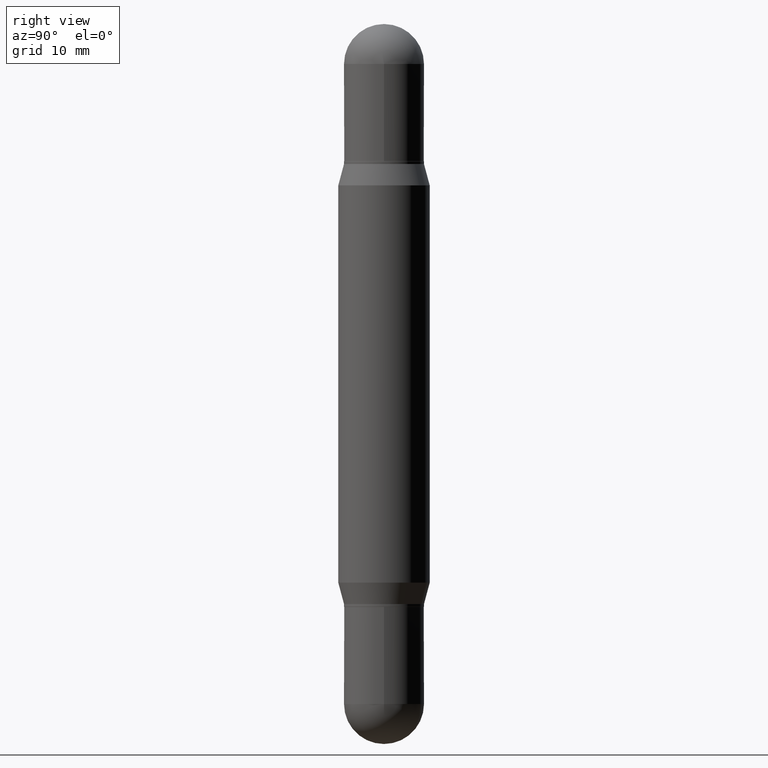
[diagram: clean part render]
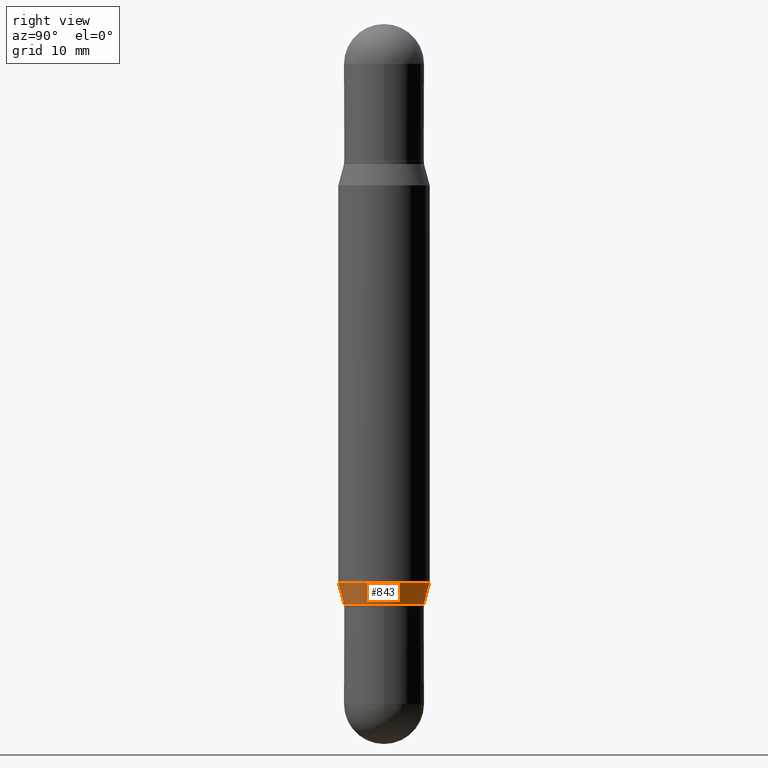
[diagram: same view with one face highlighted and labeled with its STEP entity id]
A machine part, right view. The second image highlights one B-rep face of the part: STEP entity #843.
In plain terms, the highlighted conical surface has half-angle 15 deg.
Its self-contained STEP definition (entity closure, byte-faithful):
#33 = DIRECTION ( 'NONE',  ( -6.982962677686264344E-15, -1.000000000000000000, 3.469013325287953293E-15 ) ) ;
#38 = CARTESIAN_POINT ( 'NONE',  ( 9.791278898774672041E-16, 0.1377999999999930392, -1.997900000000000897 ) ) ;
#65 = CARTESIAN_POINT ( 'NONE',  ( -1.099816621735539754E-15, -0.1575000000000067180, -1.924378599090893038 ) ) ;
#68 = EDGE_CURVE ( 'NONE', #900, #355, #1033, .T. ) ;
#86 = CARTESIAN_POINT ( 'NONE',  ( -9.622522569851185676E-16, -0.1378000000000069725, -1.997899999999999787 ) ) ;
#126 = FACE_OUTER_BOUND ( 'NONE', #1024, .T. ) ;
#131 = CIRCLE ( 'NONE', #496, 0.1575000000000000011 ) ;
#145 = EDGE_CURVE ( 'NONE', #355, #316, #131, .T. ) ;
#162 = DIRECTION ( 'NONE',  ( -2.446900684487327434E-29, 3.489430807616956751E-15, 1.000000000000000000 ) ) ;
#313 = CIRCLE ( 'NONE', #551, 0.1378000000000000058 ) ;
#316 = VERTEX_POINT ( 'NONE', #903 ) ;
#317 = DIRECTION ( 'NONE',  ( -6.982962677686265922E-15, -1.000000000000000000, 3.964946289788480896E-15 ) ) ;
#355 = VERTEX_POINT ( 'NONE', #65 ) ;
#393 = CARTESIAN_POINT ( 'NONE',  ( 4.888662877537232505E-29, -6.971533810537919527E-15, -1.997900000000000231 ) ) ;
#398 = ORIENTED_EDGE ( 'NONE', *, *, #145, .F. ) ;
#410 = DIRECTION ( 'NONE',  ( -1.807323732225330534E-15, -0.2588190451025182415, 0.9659258262890689783 ) ) ;
#475 = LINE ( 'NONE', #829, #923 ) ;
#496 = AXIS2_PLACEMENT_3D ( 'NONE', #614, #978, #33 ) ;
#531 = CONICAL_SURFACE ( 'NONE', #658, 0.1378000000000000058, 0.2617993877991502960 ) ;
#551 = AXIS2_PLACEMENT_3D ( 'NONE', #1027, #162, #317 ) ;
#576 = DIRECTION ( 'NONE',  ( -2.446900684487327434E-29, 3.489430807616956751E-15, 1.000000000000000000 ) ) ;
#586 = CARTESIAN_POINT ( 'NONE',  ( -9.622522569851185676E-16, -0.1378000000000069725, -1.997899999999999787 ) ) ;
#598 = VECTOR ( 'NONE', #410, 39.37007874015748143 ) ;
#614 = CARTESIAN_POINT ( 'NONE',  ( 4.708763311328271682E-29, -6.714985969186524876E-15, -1.924378599090893704 ) ) ;
#631 = ORIENTED_EDGE ( 'NONE', *, *, #68, .F. ) ;
#658 = AXIS2_PLACEMENT_3D ( 'NONE', #393, #576, #741 ) ;
#681 = ORIENTED_EDGE ( 'NONE', *, *, #950, .T. ) ;
#741 = DIRECTION ( 'NONE',  ( -6.982962677686265922E-15, -1.000000000000000000, 3.964946289788480896E-15 ) ) ;
#748 = DIRECTION ( 'NONE',  ( 1.839019923739600710E-15, 0.2588190451025250138, 0.9659258262890670910 ) ) ;
#796 = EDGE_CURVE ( 'NONE', #845, #316, #475, .T. ) ;
#829 = CARTESIAN_POINT ( 'NONE',  ( 9.791278898774668096E-16, 0.1377999999999930392, -1.997900000000000897 ) ) ;
#843 = ADVANCED_FACE ( 'NONE', ( #126 ), #531, .T. ) ;
#845 = VERTEX_POINT ( 'NONE', #38 ) ;
#900 = VERTEX_POINT ( 'NONE', #86 ) ;
#903 = CARTESIAN_POINT ( 'NONE',  ( 1.080528434649046348E-15, 0.1574999999999932565, -1.924378599090894149 ) ) ;
#923 = VECTOR ( 'NONE', #748, 39.37007874015748143 ) ;
#950 = EDGE_CURVE ( 'NONE', #900, #845, #313, .T. ) ;
#978 = DIRECTION ( 'NONE',  ( -2.446900684487327434E-29, 3.489430807616956751E-15, 1.000000000000000000 ) ) ;
#1009 = ORIENTED_EDGE ( 'NONE', *, *, #796, .T. ) ;
#1024 = EDGE_LOOP ( 'NONE', ( #681, #1009, #398, #631 ) ) ;
#1027 = CARTESIAN_POINT ( 'NONE',  ( 4.888662877537232505E-29, -6.971533810537919527E-15, -1.997900000000000231 ) ) ;
#1033 = LINE ( 'NONE', #586, #598 ) ;